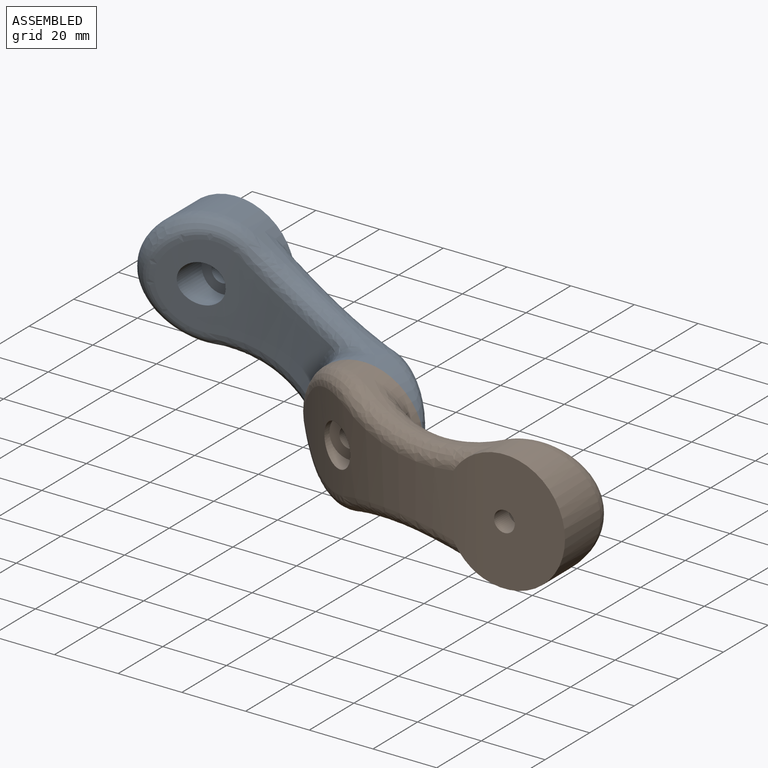
[diagram: assembled view]
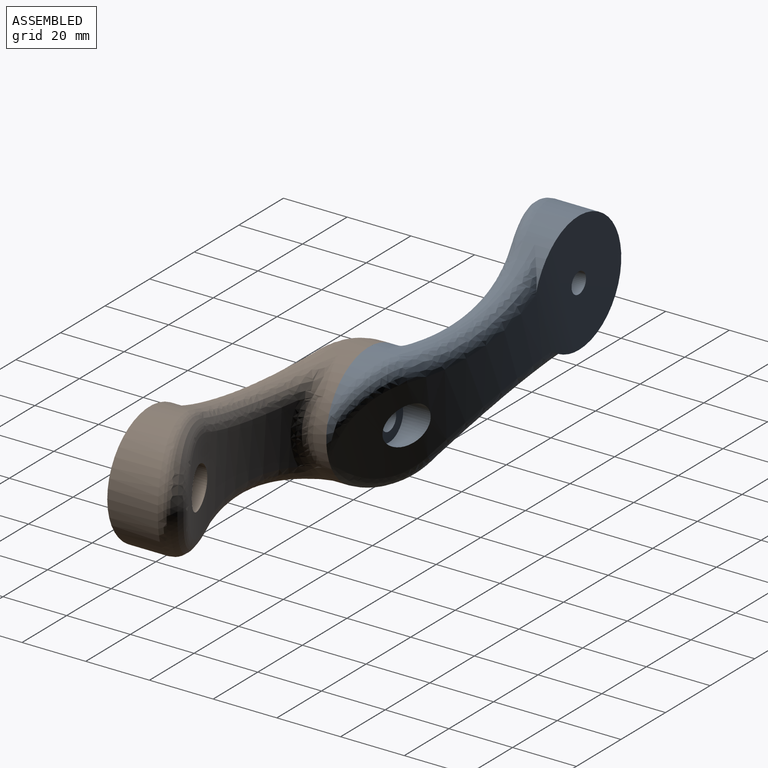
[diagram: assembled view, second angle]
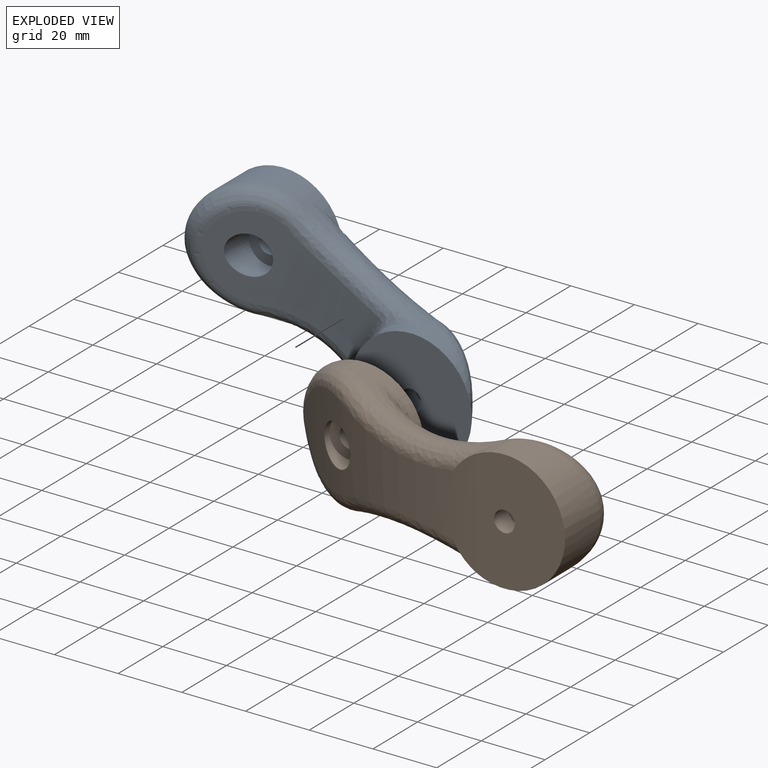
[diagram: exploded view]
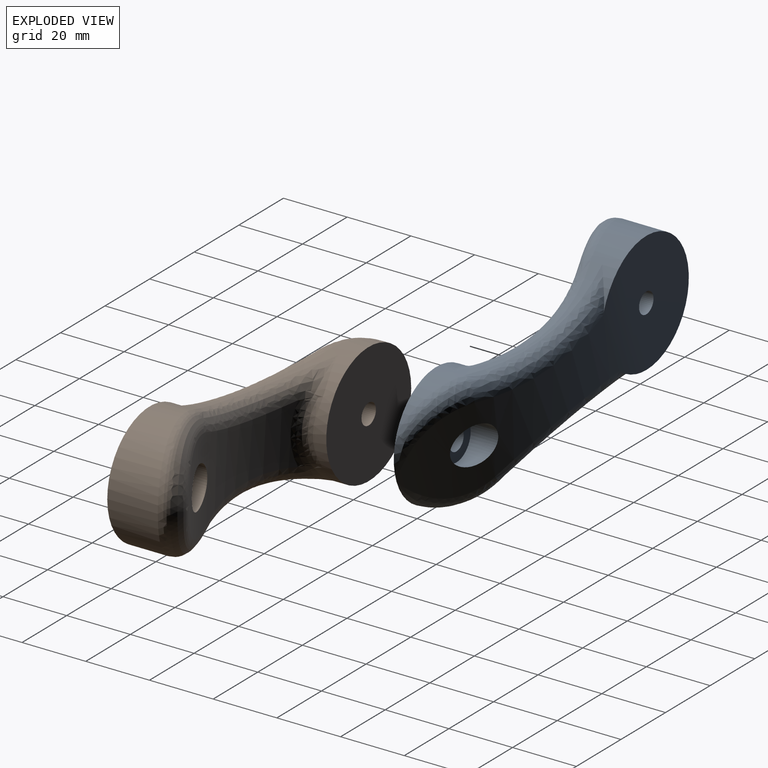
[diagram: exploded view, second angle]
ASSEMBLY  parts=2 mates=2
PART A: 26 faces, bbox 44.1x103x30.6 mm
  f0: cylinder r=3.24mm len=6.48mm, axis (0,0,1), area 129.2mm2, adj f7,f22
  f1: cylinder r=59.68mm len=53.17mm, axis (-1,0,0), area 1093mm2, adj f2,f3,f17,f19,f21
  f2: bspline ~59.4x20.22mm, area 342.9mm2, adj f1,f6,f17,f18
  f3: bspline ~59.4x20.22mm, area 342.9mm2, adj f1,f4,f17,f20
  f4: cylinder r=68.78mm len=48.47mm, axis (0,0,-1), area 94.5mm2, adj f3,f5,f8,f13
  f5: cylinder r=19.05mm len=38.1mm, axis (0,0,-1), area 996.4mm2, adj f4,f6,f7,f10,f13,f14,f17
  f6: cylinder r=68.78mm len=48.47mm, axis (0,0,-1), area 94.6mm2, adj f2,f5,f8,f14
  f7: plane 38.1x25.76mm, normal (0,0,1), area 787.5mm2, adj f0,f5,f10
  f8: cylinder r=19.05mm len=38.1mm, axis (0,0,-1), area 385.5mm2, adj f4,f6,f9,f12,f15,f18,f19,f20
  f9: plane 41.05x41.05mm, normal (0,0,-1), area 1107.1mm2, adj f8,f11,f16,f23
  f10: cylinder r=121.19mm len=74.24mm, axis (-1,0,0), area 1629.8mm2, adj f5,f7,f11,f12,f13,f14,f15,f16
  f11: bspline ~14.1x6.79mm, area 23.3mm2, adj f9,f10,f12
  f12: bspline ~24.77x15.85mm, area 167.2mm2, adj f8,f10,f11,f13
  f13: bspline ~59.01x17.08mm, area 393.9mm2, adj f4,f5,f10,f12
  f14: bspline ~62.36x18.73mm, area 393.9mm2, adj f5,f6,f10,f15
  f15: bspline ~24.77x15.85mm, area 167.2mm2, adj f8,f10,f14,f16
  f16: bspline ~14.1x6.79mm, area 34.9mm2, adj f9,f10,f15
  f17: bspline ~38.24x28.37mm, area 621.6mm2, adj f1,f2,f3,f5
  f18: bspline ~13.48x10.37mm, area 30.7mm2, adj f2,f8,f19
  f19: bspline ~23.45x6.02mm, area 105.1mm2, adj f1,f8,f18,f20
  f20: bspline ~14.99x12.86mm, area 30.7mm2, adj f3,f8,f19
  f21: cylinder r=6.35mm len=12.7mm, axis (0,0,1), area 355.3mm2, adj f1,f22
  f22: plane 12.7x12.7mm, normal (0,0,-1), area 93.7mm2, adj f0,f21
  f23: cylinder r=3.24mm len=6.48mm, axis (0,0,-1), area 129.2mm2, adj f9,f25
  f24: cylinder r=6.35mm len=12.7mm, axis (0,0,-1), area 224.9mm2, adj f10,f25
  f25: plane 12.7x12.7mm, normal (0,0,1), area 93.7mm2, adj f23,f24
PART B: same geometry as A
PLACE A rot(axis=(-0.72,-0.49,-0.49),108.9deg) t=(-120.29,0,-45.07)mm
PLACE B rot(axis=(0.58,-0.58,0.58),120deg) t=(54.05,0,-76.9)mm fixed
MATE planar A.f9 <-> B.f9  axis (0,-1,0) through (-18.07,0,-43.78)mm
MATE cylindrical B.f8 <-> A.f8  axis (0,1,0) through (-26.9,0,-26.9)mm
